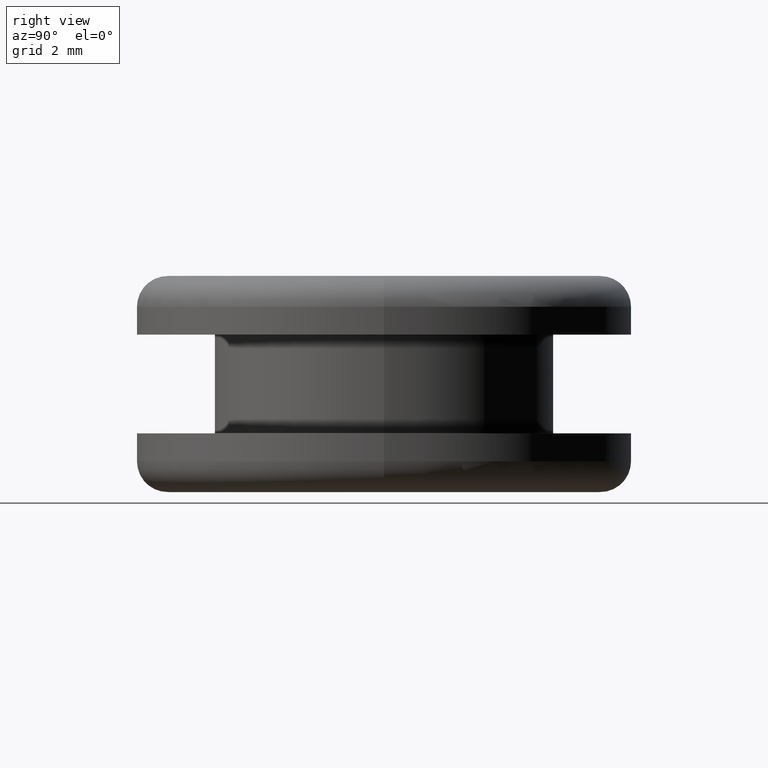
[diagram: clean part render]
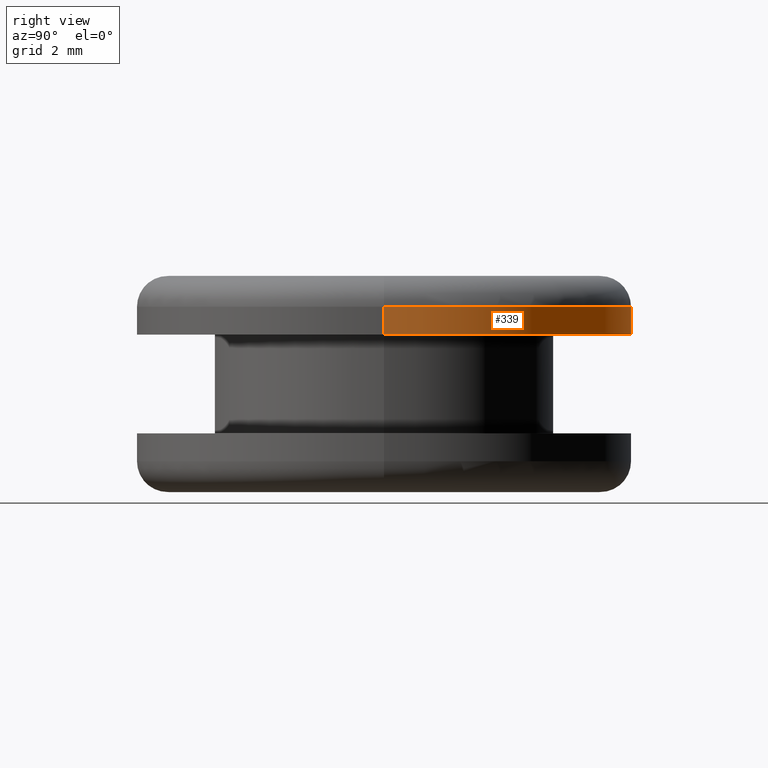
[diagram: same view with one face highlighted and labeled with its STEP entity id]
A machine part, right view. The second image highlights one B-rep face of the part: STEP entity #339.
In plain terms, the highlighted cylindrical surface (partial cylindrical patch) has radius 8 mm, axis along (0, 0, -1).
Its self-contained STEP definition (entity closure, byte-faithful):
#78 = CARTESIAN_POINT ( 'NONE',  ( 107.2049372964547000, 9.797174393025757100E-016, 0.0000000000000000000 ) ) ;
#87 = DIRECTION ( 'NONE',  ( 0.0000000000000000000, 0.0000000000000000000, -1.000000000000000000 ) ) ;
#104 = DIRECTION ( 'NONE',  ( 0.0000000000000000000, 0.0000000000000000000, -1.000000000000000000 ) ) ;
#108 = ORIENTED_EDGE ( 'NONE', *, *, #258, .F. ) ;
#110 = AXIS2_PLACEMENT_3D ( 'NONE', #158, #304, #121 ) ;
#112 = VECTOR ( 'NONE', #280, 1000.000000000000000 ) ;
#115 = CARTESIAN_POINT ( 'NONE',  ( 99.20493729657970100, 0.0000000000000000000, 146.3726952467922300 ) ) ;
#116 = CARTESIAN_POINT ( 'NONE',  ( 91.20493729670468500, 0.0000000000000000000, 0.0000000000000000000 ) ) ;
#121 = DIRECTION ( 'NONE',  ( -1.000000000000000000, 0.0000000000000000000, 0.0000000000000000000 ) ) ;
#130 = VERTEX_POINT ( 'NONE', #210 ) ;
#141 = VERTEX_POINT ( 'NONE', #256 ) ;
#143 = ORIENTED_EDGE ( 'NONE', *, *, #333, .T. ) ;
#158 = CARTESIAN_POINT ( 'NONE',  ( 99.20493729657970100, 0.0000000000000000000, 145.4726952467922000 ) ) ;
#187 = EDGE_CURVE ( 'NONE', #470, #141, #400, .T. ) ;
#191 = LINE ( 'NONE', #116, #274 ) ;
#203 = ORIENTED_EDGE ( 'NONE', *, *, #187, .T. ) ;
#210 = CARTESIAN_POINT ( 'NONE',  ( 91.20493729670468500, 0.0000000000000000000, 146.3726952467922300 ) ) ;
#231 = CARTESIAN_POINT ( 'NONE',  ( 107.2049372964547000, 9.797174393025757100E-016, 146.3726952467922300 ) ) ;
#237 = CIRCLE ( 'NONE', #110, 7.999999999875010200 ) ;
#239 = DIRECTION ( 'NONE',  ( -1.000000000000000000, 0.0000000000000000000, 0.0000000000000000000 ) ) ;
#252 = FACE_OUTER_BOUND ( 'NONE', #284, .T. ) ;
#256 = CARTESIAN_POINT ( 'NONE',  ( 107.2049372964547000, 9.797174393025757100E-016, 145.4726952467922000 ) ) ;
#258 = EDGE_CURVE ( 'NONE', #358, #141, #237, .T. ) ;
#274 = VECTOR ( 'NONE', #87, 1000.000000000000000 ) ;
#276 = CARTESIAN_POINT ( 'NONE',  ( 99.20493729657970100, 0.0000000000000000000, 0.0000000000000000000 ) ) ;
#280 = DIRECTION ( 'NONE',  ( 0.0000000000000000000, 0.0000000000000000000, -1.000000000000000000 ) ) ;
#284 = EDGE_LOOP ( 'NONE', ( #143, #203, #108, #417 ) ) ;
#304 = DIRECTION ( 'NONE',  ( 0.0000000000000000000, 0.0000000000000000000, -1.000000000000000000 ) ) ;
#312 = CARTESIAN_POINT ( 'NONE',  ( 91.20493729670468500, 0.0000000000000000000, 145.4726952467922000 ) ) ;
#315 = AXIS2_PLACEMENT_3D ( 'NONE', #115, #436, #380 ) ;
#333 = EDGE_CURVE ( 'NONE', #130, #470, #439, .T. ) ;
#339 = ADVANCED_FACE ( 'NONE', ( #252 ), #381, .T. ) ;
#358 = VERTEX_POINT ( 'NONE', #312 ) ;
#380 = DIRECTION ( 'NONE',  ( -1.000000000000000000, 0.0000000000000000000, 0.0000000000000000000 ) ) ;
#381 = CYLINDRICAL_SURFACE ( 'NONE', #387, 7.999999999875010200 ) ;
#387 = AXIS2_PLACEMENT_3D ( 'NONE', #276, #104, #239 ) ;
#400 = LINE ( 'NONE', #78, #112 ) ;
#401 = EDGE_CURVE ( 'NONE', #130, #358, #191, .T. ) ;
#417 = ORIENTED_EDGE ( 'NONE', *, *, #401, .F. ) ;
#436 = DIRECTION ( 'NONE',  ( 0.0000000000000000000, 0.0000000000000000000, -1.000000000000000000 ) ) ;
#439 = CIRCLE ( 'NONE', #315, 7.999999999875010200 ) ;
#470 = VERTEX_POINT ( 'NONE', #231 ) ;